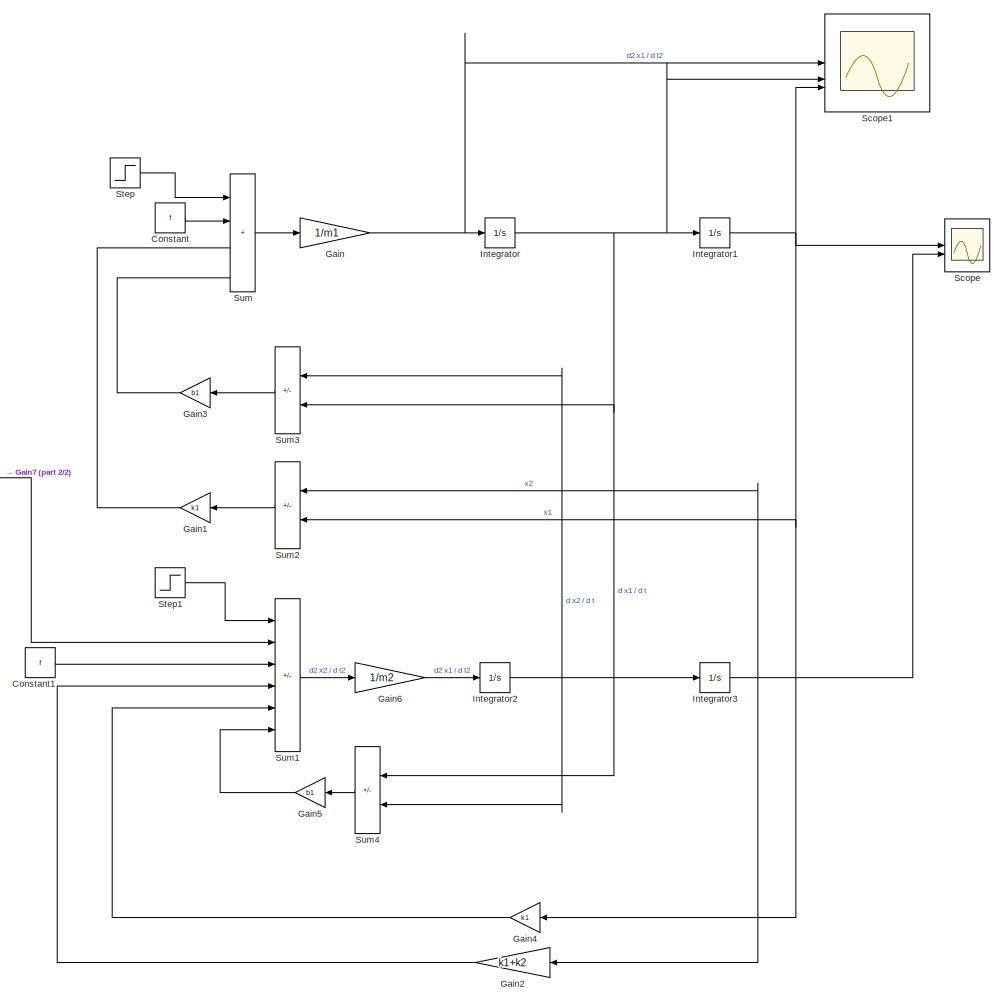
[diagram: root canvas - part 1/2, most of the canvas]
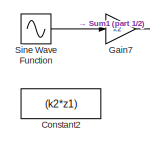
[diagram: root canvas - part 2/2, middle left region]
MODEL slx_297a6d477d56
KIND model
CONFIG AbsTol = auto
CONFIG EnableMultiTasking = off
CONFIG FixedStep = 0.001
CONFIG MaxStep = auto
CONFIG MinStep = auto
CONFIG RelTol = 1e-3
CONFIG SampleTimeConstraint = Unconstrained
CONFIG SolverName = ode4
CONFIG StartTime = 0.0
CONFIG StopTime = 10.0
BLOCK [Constant] Constant
  Value = f
BLOCK [Constant] Constant1
  Value = f
BLOCK [Constant] Constant2
  Value = (k2*z1)
BLOCK [Gain] Gain
  Gain = 1/m1
BLOCK [Gain] Gain1
  Gain = k1
  NameLocation = top
BLOCK [Gain] Gain2
  Gain = k1+k2
  NameLocation = top
BLOCK [Gain] Gain3
  Gain = b1
  NameLocation = top
BLOCK [Gain] Gain4
  Gain = k1
  NameLocation = top
BLOCK [Gain] Gain5
  Gain = b1
  NameLocation = top
BLOCK [Gain] Gain6
  Gain = 1/m2
BLOCK [Gain] Gain7
  Gain = k2
BLOCK [Integrator] Integrator
BLOCK [Integrator] Integrator1
BLOCK [Integrator] Integrator2
BLOCK [Integrator] Integrator3
BLOCK [Scope] Scope
  Floating = off
  NumInputPorts = 2
  ScopeSpecificationString = Simulink.scopes.TimeScopeBlockCfg('CurrentConfiguration', extmgr.ConfigurationSet(extmgr.Configuration('Core','General UI',true),extmgr.Configuration('Core','Source UI',true),extmgr.Configuration('Sources','WiredSimulink',true),extmgr.Configuration('Visuals','Time Domain',true,'SerializedDisplays',{struct('MinYLimReal','-0.07007','MaxYLimReal','0.08055','YLabelReal','','MinYLimMag','0.00000','MaxY...<+1352ch>
BLOCK [Scope] Scope1
  Floating = off
  NumInputPorts = 3
  ScopeSpecificationString = Simulink.scopes.TimeScopeBlockCfg('CurrentConfiguration', extmgr.ConfigurationSet(extmgr.Configuration('Core','General UI',true),extmgr.Configuration('Core','Source UI',true),extmgr.Configuration('Sources','WiredSimulink',true,'DataLoggingVariableName','ScopeData1'),extmgr.Configuration('Visuals','Time Domain',true,'SerializedDisplays',{struct('MinYLimReal','-0.59314','MaxYLimReal','0.52869','YLab...<+1413ch>
BLOCK [Sin] Sine Wave Function
  Amplitude = 0.05
  Frequency = .5*pi
  SampleTime = 0
BLOCK [Step] Step
  SampleTime = 0
BLOCK [Step] Step1
  SampleTime = 0
BLOCK [Sum] Sum
  IconShape = rectangular
  Inputs = ++++
BLOCK [Sum] Sum1
  IconShape = rectangular
  Inputs = ++--++
BLOCK [Sum] Sum2
  IconShape = rectangular
  Inputs = +-
  NameLocation = top
BLOCK [Sum] Sum3
  IconShape = rectangular
  Inputs = +-
  NameLocation = top
BLOCK [Sum] Sum4
  IconShape = rectangular
  Inputs = +-
  NameLocation = top
LINE Constant1:1 -> Sum1:3
LINE Constant:1 -> Sum:2
LINE Gain1:1 -> Sum:3
LINE Gain2:1 -> Sum1:4
LINE Gain3:1 -> Sum:4
LINE Gain4:1 -> Sum1:5
LINE Gain5:1 -> Sum1:6
LINE Gain6:1 -> Integrator2:1
LINE Gain7:1 -> Sum1:2
NET Gain:1 -> Integrator:1, Scope1:1
NET Integrator1:1 -> Gain4:1, Scope1:3, Scope:1, Sum2:2
NET Integrator2:1 -> Integrator3:1, Sum3:1, Sum4:2
NET Integrator3:1 -> Gain2:1, Scope:2, Sum2:1
NET Integrator:1 -> Integrator1:1, Scope1:2, Sum3:2, Sum4:1
LINE Sine Wave Function:1 -> Gain7:1
LINE Step1:1 -> Sum1:1
LINE Step:1 -> Sum:1
LINE Sum1:1 -> Gain6:1
LINE Sum2:1 -> Gain1:1
LINE Sum3:1 -> Gain3:1
LINE Sum4:1 -> Gain5:1
LINE Sum:1 -> Gain:1
note: NET lines group one-source signal fan-out (src -> all destinations, sorted); 1:1 wires keep LINE
